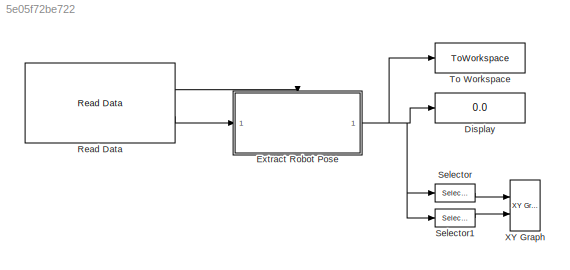
MODEL slx_5e05f72be722
KIND model
CONFIG AbsTol = auto
CONFIG EnableMultiTasking = off
CONFIG FixedStep = auto
CONFIG MaxStep = auto
CONFIG MinStep = auto
CONFIG RelTol = 1e-3
CONFIG SampleTimeConstraint = Unconstrained
CONFIG SolverName = FixedStepAuto
CONFIG StartTime = 0.0
CONFIG StopTime = 500
WORKSPACE source: mxarray member
WORKSPACE Logfile_Data_Object: robotics.ros.BagSelection (value not decoded)
WORKSPACE Logfile_Path = '<userpath>\\Desktop\\Lab-Epson 2021-12-22-10-15-22.bag'
WORKSPACE Logfile_Playback_Duration = nan
WORKSPACE Logfile_Playback_Offset = nan
BLOCK [Display] Display
  Decimation = 1
  Ports = [1]
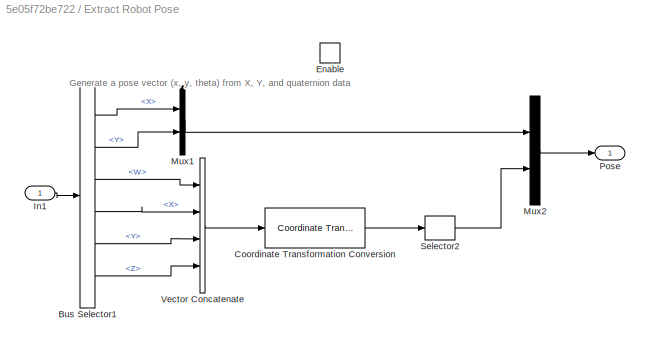
BLOCK [SubSystem] Extract Robot Pose
  Ports = [1, 1, 1]
  RequestExecContextInheritance = off
BLOCK [BusSelector] Extract Robot Pose/Bus Selector1
  OutputSignals = Pose.Pose.Position.X,Pose.Pose.Position.Y,Pose.Pose.Orientation.W,Pose.Pose.Orientation.X,Pose.Pose.Orientation.Y,Pose.Pose.Orientation.Z
  Ports = [1, 6]
BLOCK [Reference] Extract Robot Pose/Coordinate Transformation Conversion  REF=robotcorelib/Coordinate Transformation Conversion
  Ports = [1, 1]
  SourceBlock = robotcorelib/Coordinate Transformation Conversion
  SourceProductBaseCode = NV,RO,RR,UV
  SourceType = robotics.slcore.internal.block.CoordinateTransformationConversion
BLOCK [EnablePort] Extract Robot Pose/Enable
  Ports = []
BLOCK [Inport] Extract Robot Pose/In1
BLOCK [Mux] Extract Robot Pose/Mux1
  DisplayOption = bar
  Inputs = 2
  Ports = [2, 1]
BLOCK [Mux] Extract Robot Pose/Mux2
  DisplayOption = bar
  Inputs = 2
  Ports = [2, 1]
BLOCK [Outport] Extract Robot Pose/Pose
  VectorParamsAs1DForOutWhenUnconnected = off
BLOCK [Selector] Extract Robot Pose/Selector2
  IndexOptions = Index vector (dialog)
  Indices = 1
  InputPortWidth = 3
  OutputSizes = 1
  Ports = [1, 1]
BLOCK [Concatenate] Extract Robot Pose/Vector Concatenate
  NumInputs = 4
  Ports = [4, 1]
BLOCK [Reference] Read Data  REF=robotlib/Read Data
  Ports = [0, 2]
  SourceBlock = robotlib/Read Data
  SourceProductBaseCode = RR
  SourceType = Read Data from Logfile
BLOCK [Selector] Selector
  IndexOptions = Index vector (dialog)
  Indices = [1]
  InputPortWidth = 3
  OutputSizes = 1
  Ports = [1, 1]
BLOCK [Selector] Selector1
  IndexOptions = Index vector (dialog)
  Indices = [2]
  InputPortWidth = 3
  OutputSizes = 1
  Ports = [1, 1]
BLOCK [ToWorkspace] To Workspace
  FixptAsFi = on
  MaxDataPoints = inf
  Ports = [1]
  SampleTime = 1
  Save2DSignal = 2-D array (concatenate along first dimension)
  VariableName = waypoints
BLOCK [Reference] XY Graph  REF=simulink/Sinks/XY Graph
  Ports = [2]
  SourceBlock = simulink/Sinks/XY Graph
  SourceProductBaseCode = SL
  SourceType = XY scope.
ANNOTATION Extract Robot Pose: Generate a pose vector (x, y, theta) from X, Y, and quaternion data
LINE Extract Robot Pose/Bus Selector1:1 -> Extract Robot Pose/Mux1:1
LINE Extract Robot Pose/Bus Selector1:2 -> Extract Robot Pose/Mux1:2
LINE Extract Robot Pose/Bus Selector1:3 -> Extract Robot Pose/Vector Concatenate:1
LINE Extract Robot Pose/Bus Selector1:4 -> Extract Robot Pose/Vector Concatenate:2
LINE Extract Robot Pose/Bus Selector1:5 -> Extract Robot Pose/Vector Concatenate:3
LINE Extract Robot Pose/Bus Selector1:6 -> Extract Robot Pose/Vector Concatenate:4
LINE Extract Robot Pose/Coordinate Transformation Conversion:1 -> Extract Robot Pose/Selector2:1
LINE Extract Robot Pose/In1:1 -> Extract Robot Pose/Bus Selector1:1
LINE Extract Robot Pose/Mux1:1 -> Extract Robot Pose/Mux2:1
LINE Extract Robot Pose/Mux2:1 -> Extract Robot Pose/Pose:1
LINE Extract Robot Pose/Selector2:1 -> Extract Robot Pose/Mux2:2
LINE Extract Robot Pose/Vector Concatenate:1 -> Extract Robot Pose/Coordinate Transformation Conversion:1
NET Extract Robot Pose:1 -> Display:1, Selector1:1, Selector:1, To Workspace:1
LINE Read Data:1 -> Extract Robot Pose:enable
LINE Read Data:2 -> Extract Robot Pose:1
LINE Selector1:1 -> XY Graph:2
LINE Selector:1 -> XY Graph:1
note: NET lines group one-source signal fan-out (src -> all destinations, sorted); 1:1 wires keep LINE
